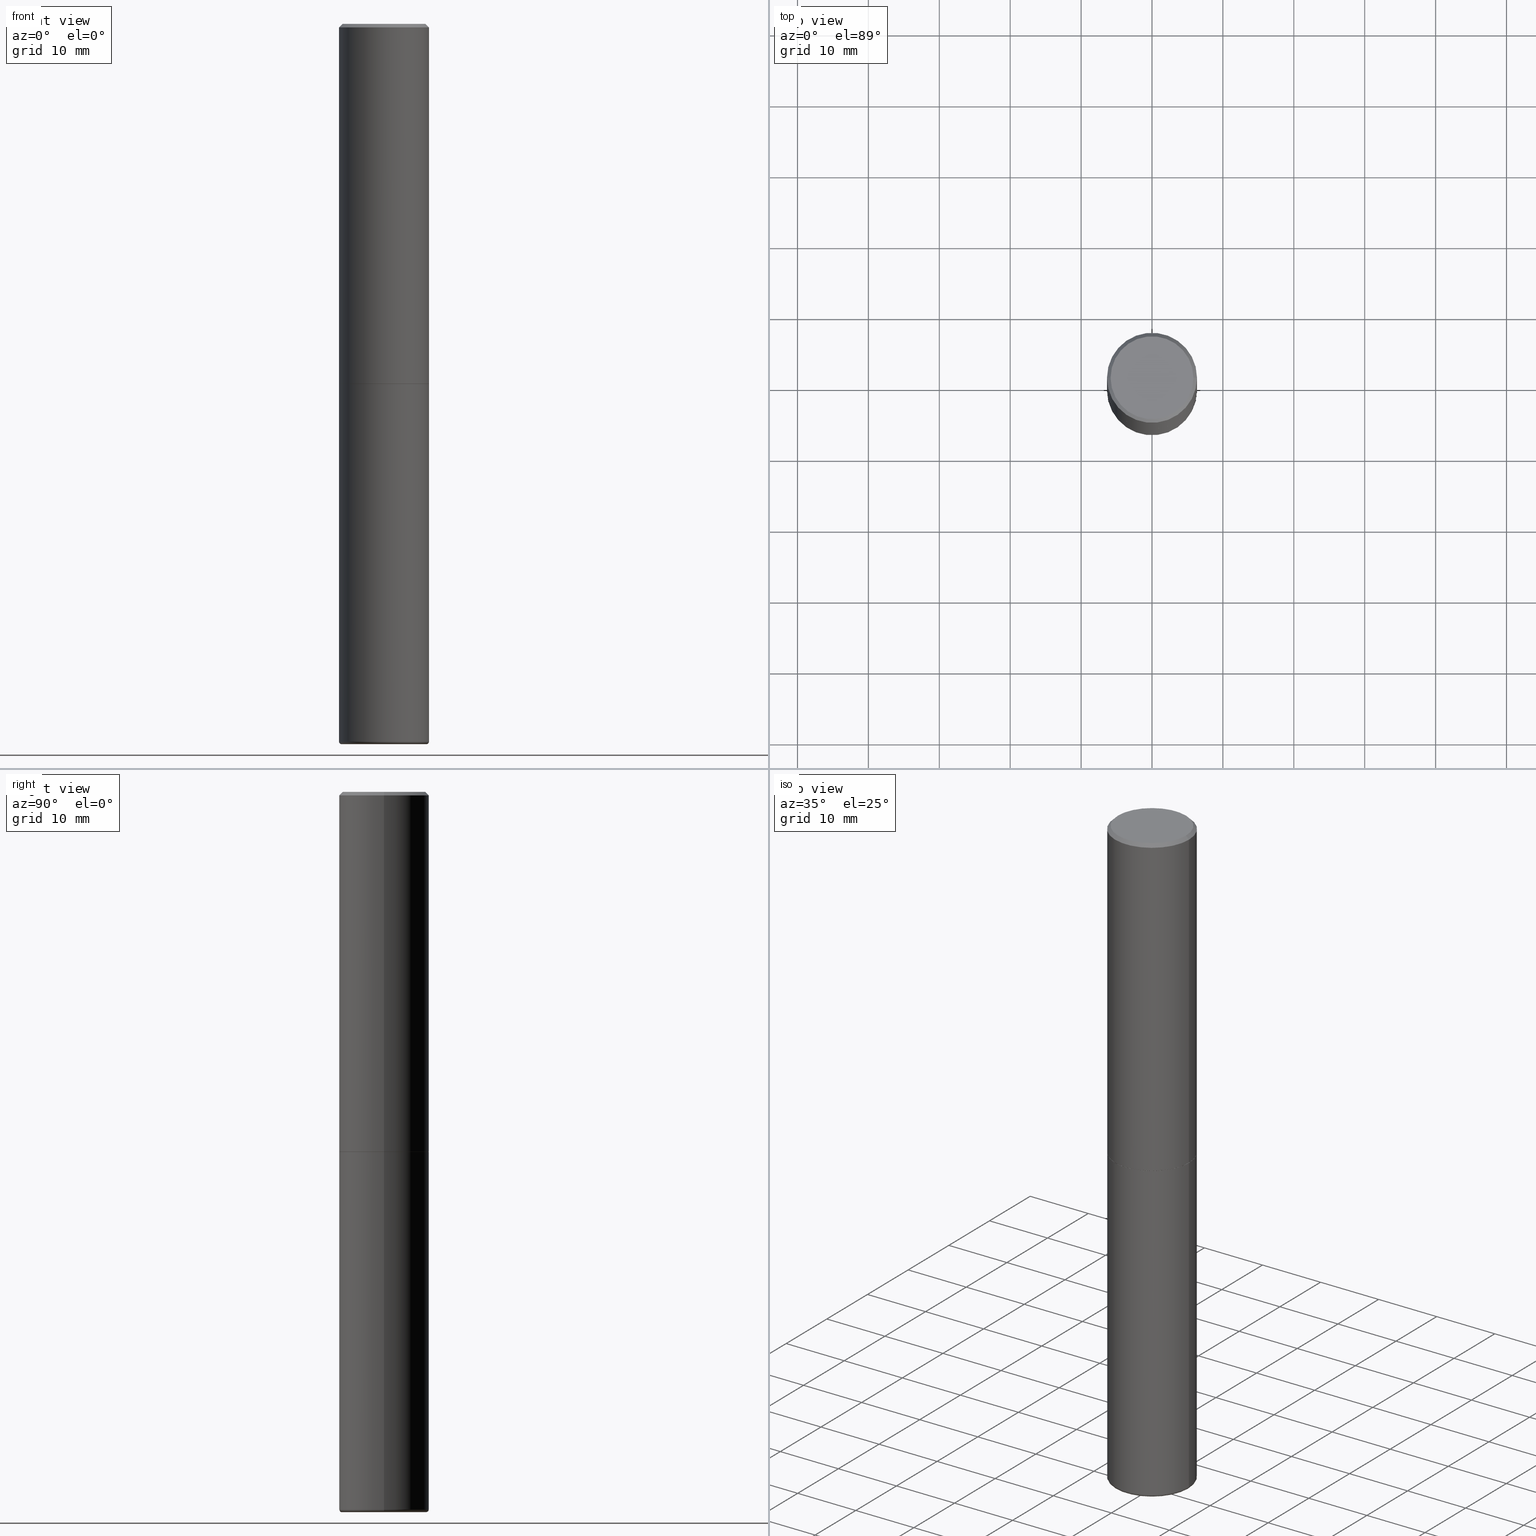
[diagram: canonical four-view strip — front | top / right | iso, engineering-drawing reading convention]
A machine part, canonical four-view strip (front | top / right | iso — engineering-drawing reading convention). The complete STEP part file that produces these views, byte-faithful:
ISO-10303-21;
HEADER;
FILE_DESCRIPTION (( 'STEP AP203' ),
    '1' );
FILE_NAME ('35617.STEP',
    '2022-11-02T20:28:33',
    ( '' ),
    ( '' ),
    'SwSTEP 2.0',
    'SolidWorks 2022',
    '' );
FILE_SCHEMA (( 'CONFIG_CONTROL_DESIGN' ));
ENDSEC;

DATA;
#1 = AXIS2_PLACEMENT_3D ( 'NONE', #134, #99, #222 ) ;
#2 = AXIS2_PLACEMENT_3D ( 'NONE', #331, #301, #256 ) ;
#3 = ORIENTED_EDGE ( 'NONE', *, *, #362, .T. ) ;
#4 = EDGE_CURVE ( 'NONE', #121, #168, #402, .T. ) ;
#5 = VECTOR ( 'NONE', #71, 39.37007874015748143 ) ;
#6 = CC_DESIGN_APPROVAL ( #428, ( #295 ) ) ;
#7 = EDGE_LOOP ( 'NONE', ( #365, #283 ) ) ;
#8 = DIRECTION ( 'NONE',  ( 1.000000000000000000, -6.982962677686268288E-15, 4.883557194083113462E-29 ) ) ;
#9 = FACE_OUTER_BOUND ( 'NONE', #326, .T. ) ;
#10 = EDGE_CURVE ( 'NONE', #348, #470, #146, .T. ) ;
#11 = DIRECTION ( 'NONE',  ( 7.105427357601001859E-15, 1.000000000000000000, -3.491481338843145583E-15 ) ) ;
#12 = VERTEX_POINT ( 'NONE', #85 ) ;
#13 = AXIS2_PLACEMENT_3D ( 'NONE', #327, #252, #433 ) ;
#14 = DIRECTION ( 'NONE',  ( -2.445468806185136597E-29, 3.491481338843145583E-15, 1.000000000000000000 ) ) ;
#15 = ORIENTED_EDGE ( 'NONE', *, *, #46, .T. ) ;
#16 = APPROVAL_DATE_TIME ( #208, #464 ) ;
#17 = ORIENTED_EDGE ( 'NONE', *, *, #280, .T. ) ;
#18 = CARTESIAN_POINT ( 'NONE',  ( 0.2348691019675247238, -1.557724435915918380E-14, -4.000000000000000000 ) ) ;
#19 = CARTESIAN_POINT ( 'NONE',  ( 0.2500000000000000555, -1.565929579888516622E-14, -3.985000571154037274 ) ) ;
#20 = CARTESIAN_POINT ( 'NONE',  ( 9.781306159430471629E-29, -1.396511288092772933E-14, -3.999767298070359356 ) ) ;
#21 = DIRECTION ( 'NONE',  ( 1.000000000000000000, 0.000000000000000000, 0.000000000000000000 ) ) ;
#22 = DIRECTION ( 'NONE',  ( -2.445468806185136877E-29, 3.491481338843145188E-15, 1.000000000000000000 ) ) ;
#23 = AXIS2_PLACEMENT_3D ( 'NONE', #182, #216, #72 ) ;
#24 = CC_DESIGN_APPROVAL ( #464, ( #345 ) ) ;
#25 = CARTESIAN_POINT ( 'NONE',  ( 4.890937612370273194E-29, -6.982962677686291165E-15, -2.000000000000000000 ) ) ;
#26 = LENGTH_MEASURE_WITH_UNIT ( LENGTH_MEASURE( 0.02539999999999999897 ), #485 );
#27 = FACE_OUTER_BOUND ( 'NONE', #221, .T. ) ;
#28 = DIRECTION ( 'NONE',  ( -1.000000000000000000, 6.982962677686267499E-15, 0.000000000000000000 ) ) ;
#29 = FACE_OUTER_BOUND ( 'NONE', #156, .T. ) ;
#30 = CYLINDRICAL_SURFACE ( 'NONE', #462, 0.2500000000000000000 ) ;
#31 = CIRCLE ( 'NONE', #1, 0.2489999999999999714 ) ;
#32 = CALENDAR_DATE ( 2022, 2, 11 ) ;
#33 = DIRECTION ( 'NONE',  ( 1.000000000000000000, -6.982962677686267499E-15, 0.000000000000000000 ) ) ;
#34 = APPROVAL_ROLE ( '' ) ;
#35 = ORIENTED_EDGE ( 'NONE', *, *, #288, .F. ) ;
#36 = EDGE_CURVE ( 'NONE', #114, #277, #160, .T. ) ;
#37 =( NAMED_UNIT ( * ) PLANE_ANGLE_UNIT ( ) SI_UNIT ( $, .RADIAN. ) );
#38 = VECTOR ( 'NONE', #22, 39.37007874015748143 ) ;
#39 = ADVANCED_FACE ( 'NONE', ( #9 ), #278, .F. ) ;
#40 = EDGE_LOOP ( 'NONE', ( #441, #360, #3, #318 ) ) ;
#41 = EDGE_LOOP ( 'NONE', ( #235, #275, #49, #317 ) ) ;
#42 = CIRCLE ( 'NONE', #86, 0.2299999999999992328 ) ;
#43 = CONICAL_SURFACE ( 'NONE', #315, 0.2489999999999999714, 0.7853981633974141952 ) ;
#44 = CARTESIAN_POINT ( 'NONE',  ( -0.2499999999999993061, 1.675911042644698449E-15, -0.02000000000000010797 ) ) ;
#45 = DIRECTION ( 'NONE',  ( -2.445468806185136597E-29, 3.491481338843145583E-15, 1.000000000000000000 ) ) ;
#46 = EDGE_CURVE ( 'NONE', #387, #439, #369, .T. ) ;
#47 = DIRECTION ( 'NONE',  ( 0.9993908270190957621, -6.978169709227547799E-15, -0.03489949670250241942 ) ) ;
#48 = CC_DESIGN_DATE_AND_TIME_ASSIGNMENT ( #106, #260, ( #295 ) ) ;
#49 = ORIENTED_EDGE ( 'NONE', *, *, #449, .T. ) ;
#50 = CARTESIAN_POINT ( 'NONE',  ( 4.890937612370273194E-29, -6.982962677686291165E-15, -2.000000000000000000 ) ) ;
#51 = COORDINATED_UNIVERSAL_TIME_OFFSET ( 5, 0, .BEHIND. ) ;
#52 = AXIS2_PLACEMENT_3D ( 'NONE', #65, #450, #141 ) ;
#53 = VECTOR ( 'NONE', #255, 39.37007874015748854 ) ;
#54 = CC_DESIGN_PERSON_AND_ORGANIZATION_ASSIGNMENT ( #484, #440, ( #78 ) ) ;
#55 = DIRECTION ( 'NONE',  ( -2.445468806185136597E-29, 3.491481338843145583E-15, 1.000000000000000000 ) ) ;
#56 = DIRECTION ( 'NONE',  ( -0.9993908270190957621, 6.856857904024552526E-15, -0.03489949670250241942 ) ) ;
#57 = EDGE_LOOP ( 'NONE', ( #119, #436, #291, #162 ) ) ;
#58 = CYLINDRICAL_SURFACE ( 'NONE', #187, 0.2500000000000000000 ) ;
#59 = DIRECTION ( 'NONE',  ( 2.445468806185136597E-29, -3.491481338843145583E-15, -1.000000000000000000 ) ) ;
#60 =( NAMED_UNIT ( * ) SI_UNIT ( $, .STERADIAN. ) SOLID_ANGLE_UNIT ( ) );
#61 = DIRECTION ( 'NONE',  ( 1.000000000000000000, -6.982962677686213068E-15, 0.000000000000000000 ) ) ;
#62 = CARTESIAN_POINT ( 'NONE',  ( -0.2489999999999999714, -5.208412811295419307E-15, -2.000000000000000000 ) ) ;
#63 = PERSON_AND_ORGANIZATION ( #434, #479 ) ;
#64 = CIRCLE ( 'NONE', #477, 0.2348691019675247238 ) ;
#65 = CARTESIAN_POINT ( 'NONE',  ( 1.606081415867835743E-15, 0.2299999999999992328, -7.987721954438203042E-16 ) ) ;
#66 = MECHANICAL_CONTEXT ( 'NONE', #447, 'mechanical' ) ;
#67 = ADVANCED_FACE ( 'NONE', ( #29 ), #307, .F. ) ;
#68 = EDGE_CURVE ( 'NONE', #81, #348, #265, .T. ) ;
#69 = DIRECTION ( 'NONE',  ( -1.000000000000000000, 6.982962677686262766E-15, 0.000000000000000000 ) ) ;
#70 = DATE_AND_TIME ( #32, #202 ) ;
#71 = DIRECTION ( 'NONE',  ( -0.7071067811865471286, 2.468850131082252722E-15, -0.7071067811865479058 ) ) ;
#72 = DIRECTION ( 'NONE',  ( 1.000000000000000000, -6.982962677686266711E-15, 0.000000000000000000 ) ) ;
#73 = PERSON_AND_ORGANIZATION_ROLE ( 'design_supplier' ) ;
#74 = ADVANCED_FACE ( 'NONE', ( #304 ), #486, .T. ) ;
#75 = ORIENTED_EDGE ( 'NONE', *, *, #409, .F. ) ;
#76 = COORDINATED_UNIVERSAL_TIME_OFFSET ( 5, 0, .BEHIND. ) ;
#77 = VERTEX_POINT ( 'NONE', #414 ) ;
#78 = PRODUCT ( '35617', '35617', '', ( #66 ) ) ;
#79 = CIRCLE ( 'NONE', #308, 0.2499999999999999722 ) ;
#80 = LOCAL_TIME ( 16, 28, 33.00000000000000000, #76 ) ;
#81 = VERTEX_POINT ( 'NONE', #62 ) ;
#82 = ORIENTED_EDGE ( 'NONE', *, *, #267, .F. ) ;
#83 = ORIENTED_EDGE ( 'NONE', *, *, #409, .T. ) ;
#84 = LINE ( 'NONE', #395, #192 ) ;
#85 = CARTESIAN_POINT ( 'NONE',  ( 0.2499999999999993061, -1.784954126219741456E-15, -0.02000000000000010797 ) ) ;
#86 = AXIS2_PLACEMENT_3D ( 'NONE', #253, #139, #102 ) ;
#87 = ORIENTED_EDGE ( 'NONE', *, *, #4, .T. ) ;
#88 = ADVANCED_FACE ( 'NONE', ( #448 ), #320, .F. ) ;
#89 = DIRECTION ( 'NONE',  ( 1.000000000000000000, -6.982962677686267499E-15, 0.000000000000000000 ) ) ;
#90 = PLANE ( 'NONE',  #443 ) ;
#91 = ORIENTED_EDGE ( 'NONE', *, *, #46, .F. ) ;
#92 = PERSON_AND_ORGANIZATION ( #434, #479 ) ;
#93 = ADVANCED_FACE ( 'NONE', ( #105 ), #271, .F. ) ;
#94 = PERSON_AND_ORGANIZATION_ROLE ( 'creator' ) ;
#95 = ORIENTED_EDGE ( 'NONE', *, *, #309, .T. ) ;
#96 = TOROIDAL_SURFACE ( 'NONE', #161, 0.2350000000000002642, 0.01499999999999983638 ) ;
#97 = CC_DESIGN_APPROVAL ( #195, ( #189 ) ) ;
#98 = PLANE ( 'NONE',  #432 ) ;
#99 = DIRECTION ( 'NONE',  ( -2.445468806185136597E-29, 3.491481338843145583E-15, 1.000000000000000000 ) ) ;
#100 = PERSON_AND_ORGANIZATION ( #434, #479 ) ;
#101 = CARTESIAN_POINT ( 'NONE',  ( 0.2489999999999999714, -8.721720384430171040E-15, -2.000000000000000000 ) ) ;
#102 = DIRECTION ( 'NONE',  ( 1.000000000000000000, -6.982962677686266711E-15, 4.875813741439116029E-29 ) ) ;
#103 = APPROVAL_ROLE ( '' ) ;
#104 = CARTESIAN_POINT ( 'NONE',  ( 4.890937612370299433E-31, -6.982962677686328587E-17, -0.02000000000000010797 ) ) ;
#105 = FACE_OUTER_BOUND ( 'NONE', #420, .T. ) ;
#106 = DATE_AND_TIME ( #361, #359 ) ;
#107 = AXIS2_PLACEMENT_3D ( 'NONE', #188, #491, #61 ) ;
#108 = DIRECTION ( 'NONE',  ( 1.000000000000000000, -6.982962677686267499E-15, 0.000000000000000000 ) ) ;
#109 = CARTESIAN_POINT ( 'NONE',  ( 9.781875224740546387E-29, -1.396592535537258233E-14, -4.000000000000000000 ) ) ;
#110 = PERSON_AND_ORGANIZATION ( #434, #479 ) ;
#111 = ADVANCED_BREP_SHAPE_REPRESENTATION ( '35617', ( #203, #372, #127 ), #386 ) ;
#112 = CARTESIAN_POINT ( 'NONE',  ( -0.2500000000000000000, 1.776356839400250465E-15, -1.229733772563726445E-29 ) ) ;
#113 = LINE ( 'NONE', #487, #401 ) ;
#114 = VERTEX_POINT ( 'NONE', #376 ) ;
#115 = CIRCLE ( 'NONE', #23, 0.2082041019675247295 ) ;
#116 = PRODUCT_DEFINITION_SHAPE ( 'NONE', 'NONE',  #295 ) ;
#117 = EDGE_LOOP ( 'NONE', ( #120, #154, #429, #343 ) ) ;
#118 = CC_DESIGN_PERSON_AND_ORGANIZATION_ASSIGNMENT ( #100, #94, ( #345 ) ) ;
#119 = ORIENTED_EDGE ( 'NONE', *, *, #351, .F. ) ;
#120 = ORIENTED_EDGE ( 'NONE', *, *, #130, .F. ) ;
#121 = VERTEX_POINT ( 'NONE', #259 ) ;
#122 = EDGE_CURVE ( 'NONE', #421, #81, #31, .T. ) ;
#123 = VERTEX_POINT ( 'NONE', #184 ) ;
#124 = CARTESIAN_POINT ( 'NONE',  ( 0.2299999999999992328, -1.681434332853594278E-15, 8.537024980212318048E-18 ) ) ;
#125 = CARTESIAN_POINT ( 'NONE',  ( 9.781875224740546387E-29, -1.396592535537258233E-14, -4.000000000000000000 ) ) ;
#126 = ORIENTED_EDGE ( 'NONE', *, *, #198, .F. ) ;
#127 = AXIS2_PLACEMENT_3D ( 'NONE', #481, #142, #21 ) ;
#128 = DIRECTION ( 'NONE',  ( -2.445468806185136597E-29, 3.491481338843145583E-15, 1.000000000000000000 ) ) ;
#129 = ORIENTED_EDGE ( 'NONE', *, *, #254, .T. ) ;
#130 = EDGE_CURVE ( 'NONE', #277, #114, #42, .T. ) ;
#131 = CARTESIAN_POINT ( 'NONE',  ( 0.2500000000000000000, -1.745740669421566678E-15, 1.219044193948983948E-29 ) ) ;
#132 = DIRECTION ( 'NONE',  ( -2.438088387897960049E-29, 3.491481338843145188E-15, 1.000000000000000000 ) ) ;
#133 = ORIENTED_EDGE ( 'NONE', *, *, #424, .F. ) ;
#134 = CARTESIAN_POINT ( 'NONE',  ( 4.890937612370273194E-29, -6.982962677686291165E-15, -2.000000000000000000 ) ) ;
#135 = APPLICATION_PROTOCOL_DEFINITION ( 'international standard', 'config_control_design', 1994, #447 ) ;
#136 = AXIS2_PLACEMENT_3D ( 'NONE', #109, #336, #145 ) ;
#137 = CIRCLE ( 'NONE', #489, 0.2499999999999993061 ) ;
#138 = CARTESIAN_POINT ( 'NONE',  ( 9.781875224740546387E-29, -1.396592535537258233E-14, -4.000000000000000000 ) ) ;
#139 = DIRECTION ( 'NONE',  ( -2.445468806185136597E-29, 3.491481338843145583E-15, 1.000000000000000000 ) ) ;
#140 = DIRECTION ( 'NONE',  ( -0.9999619230641714207, 6.952228252019186602E-15, -0.008726535498369011531 ) ) ;
#141 = DIRECTION ( 'NONE',  ( -1.000000000000000000, 6.982962677686265922E-15, -4.876176775795935793E-29 ) ) ;
#142 = DIRECTION ( 'NONE',  ( 0.000000000000000000, 0.000000000000000000, 1.000000000000000000 ) ) ;
#143 = EDGE_CURVE ( 'NONE', #277, #12, #490, .T. ) ;
#144 =( CONVERSION_BASED_UNIT ( 'INCH', #26 ) LENGTH_UNIT ( ) NAMED_UNIT ( #302 ) );
#145 = DIRECTION ( 'NONE',  ( 1.000000000000000000, -6.982962677686262766E-15, 0.000000000000000000 ) ) ;
#146 = CIRCLE ( 'NONE', #425, 0.2499999999999999722 ) ;
#147 = VECTOR ( 'NONE', #300, 39.37007874015748143 ) ;
#148 = FACE_OUTER_BOUND ( 'NONE', #40, .T. ) ;
#149 = DIRECTION ( 'NONE',  ( 1.000000000000000000, -6.982962677686266711E-15, 4.876176775795935793E-29 ) ) ;
#150 = ADVANCED_FACE ( 'NONE', ( #373 ), #367, .T. ) ;
#151 = DIRECTION ( 'NONE',  ( -2.445468806185136877E-29, 3.491481338843145188E-15, 1.000000000000000000 ) ) ;
#152 = DIRECTION ( 'NONE',  ( 1.000000000000000000, -6.982962677686266711E-15, 4.876176775795935793E-29 ) ) ;
#153 = PERSON_AND_ORGANIZATION ( #434, #479 ) ;
#154 = ORIENTED_EDGE ( 'NONE', *, *, #143, .T. ) ;
#155 = CIRCLE ( 'NONE', #237, 0.2500000000000000555 ) ;
#156 = EDGE_LOOP ( 'NONE', ( #314, #197 ) ) ;
#157 = EDGE_CURVE ( 'NONE', #123, #194, #261, .T. ) ;
#158 = EDGE_CURVE ( 'NONE', #423, #77, #79, .T. ) ;
#159 = ORIENTED_EDGE ( 'NONE', *, *, #68, .T. ) ;
#160 = CIRCLE ( 'NONE', #488, 0.2299999999999992328 ) ;
#161 = AXIS2_PLACEMENT_3D ( 'NONE', #364, #128, #435 ) ;
#162 = ORIENTED_EDGE ( 'NONE', *, *, #233, .F. ) ;
#163 = EDGE_LOOP ( 'NONE', ( #249, #363, #328, #391 ) ) ;
#164 = DIRECTION ( 'NONE',  ( 1.000000000000000000, -6.982962677686262766E-15, 0.000000000000000000 ) ) ;
#165 = DIRECTION ( 'NONE',  ( -2.445468806185136597E-29, 3.491481338843145583E-15, 1.000000000000000000 ) ) ;
#166 = ORIENTED_EDGE ( 'NONE', *, *, #198, .T. ) ;
#167 = DIRECTION ( 'NONE',  ( -1.000000000000000000, 7.105427357600937172E-15, 0.000000000000000000 ) ) ;
#168 = VERTEX_POINT ( 'NONE', #483 ) ;
#169 = AXIS2_PLACEMENT_3D ( 'NONE', #407, #217, #370 ) ;
#170 = DIRECTION ( 'NONE',  ( 1.000000000000000000, -6.982962677686266711E-15, 4.876176775795935793E-29 ) ) ;
#171 = ORIENTED_EDGE ( 'NONE', *, *, #351, .T. ) ;
#172 = CARTESIAN_POINT ( 'NONE',  ( 9.781306159430471629E-29, -1.396511288092772933E-14, -3.999767298070359356 ) ) ;
#173 = FACE_OUTER_BOUND ( 'NONE', #473, .T. ) ;
#174 = CARTESIAN_POINT ( 'NONE',  ( 9.781875224740546387E-29, -1.396592535537258233E-14, -4.000000000000000000 ) ) ;
#175 = APPLICATION_PROTOCOL_DEFINITION ( 'international standard', 'config_control_design', 1994, #465 ) ;
#176 = AXIS2_PLACEMENT_3D ( 'NONE', #474, #243, #324 ) ;
#177 = DIRECTION ( 'NONE',  ( 2.438088387897960049E-29, -3.491481338843145188E-15, -1.000000000000000000 ) ) ;
#178 = ADVANCED_FACE ( 'NONE', ( #27 ), #58, .T. ) ;
#179 = DIRECTION ( 'NONE',  ( -2.445468806185136597E-29, 3.491481338843145583E-15, 1.000000000000000000 ) ) ;
#180 = DIRECTION ( 'NONE',  ( 1.000000000000000000, -6.982962677686267499E-15, 0.000000000000000000 ) ) ;
#181 = CARTESIAN_POINT ( 'NONE',  ( -0.2489999999999999714, -5.213711265643641709E-15, -2.000000000000000000 ) ) ;
#182 = CARTESIAN_POINT ( 'NONE',  ( 9.781306159430471629E-29, -1.396511288092772933E-14, -3.999767298070359356 ) ) ;
#183 = ADVANCED_FACE ( 'NONE', ( #366 ), #220, .T. ) ;
#184 = CARTESIAN_POINT ( 'NONE',  ( -0.2500000000000000555, -8.671902064174693707E-15, -3.985000571154037274 ) ) ;
#185 = ADVANCED_FACE ( 'NONE', ( #330 ), #393, .T. ) ;
#186 = AXIS2_PLACEMENT_3D ( 'NONE', #453, #338, #149 ) ;
#187 = AXIS2_PLACEMENT_3D ( 'NONE', #285, #213, #170 ) ;
#188 = CARTESIAN_POINT ( 'NONE',  ( 0.2350000000000002642, -1.555455135871987285E-14, -3.985000571154037274 ) ) ;
#189 = SECURITY_CLASSIFICATION ( '', '', #230 ) ;
#190 = CARTESIAN_POINT ( 'NONE',  ( 4.890937612370273194E-29, -6.982962677686291165E-15, -2.000000000000000000 ) ) ;
#191 = VERTEX_POINT ( 'NONE', #438 ) ;
#192 = VECTOR ( 'NONE', #47, 39.37007874015747433 ) ;
#193 = VECTOR ( 'NONE', #323, 39.37007874015748854 ) ;
#194 = VERTEX_POINT ( 'NONE', #19 ) ;
#195 = APPROVAL ( #225, 'UNSPECIFIED' ) ;
#196 = ORIENTED_EDGE ( 'NONE', *, *, #280, .F. ) ;
#197 = ORIENTED_EDGE ( 'NONE', *, *, #130, .T. ) ;
#198 = EDGE_CURVE ( 'NONE', #191, #387, #472, .T. ) ;
#199 = CLOSED_SHELL ( 'NONE', ( #185, #74, #183, #356, #150, #397, #319, #67 ) ) ;
#200 = AXIS2_PLACEMENT_3D ( 'NONE', #354, #11, #167 ) ;
#201 = ORIENTED_EDGE ( 'NONE', *, *, #347, .F. ) ;
#202 = LOCAL_TIME ( 16, 28, 33.00000000000000000, #384 ) ;
#203 = MANIFOLD_SOLID_BREP ( 'Body-Move/Copy2[1]', #431 ) ;
#204 = CARTESIAN_POINT ( 'NONE',  ( 4.890937612370299433E-31, -6.982962677686328587E-17, -0.02000000000000010797 ) ) ;
#205 = ORIENTED_EDGE ( 'NONE', *, *, #158, .F. ) ;
#206 = CARTESIAN_POINT ( 'NONE',  ( 9.745194589387151440E-29, -1.391355512946359954E-14, -3.985000571154037274 ) ) ;
#207 = DIRECTION ( 'NONE',  ( 1.000000000000000000, -6.982962677686267499E-15, 0.000000000000000000 ) ) ;
#208 = DATE_AND_TIME ( #445, #251 ) ;
#209 = CIRCLE ( 'NONE', #200, 0.01499999999999983985 ) ;
#210 = VERTEX_POINT ( 'NONE', #44 ) ;
#211 = CARTESIAN_POINT ( 'NONE',  ( 4.888492143564087591E-29, -6.979471196347447369E-15, -1.998999999999999888 ) ) ;
#212 = CARTESIAN_POINT ( 'NONE',  ( 4.888492143564087591E-29, -6.979471196347447369E-15, -1.998999999999999888 ) ) ;
#213 = DIRECTION ( 'NONE',  ( -2.445468806185136597E-29, 3.491481338843145583E-15, 1.000000000000000000 ) ) ;
#214 = CARTESIAN_POINT ( 'NONE',  ( 0.2499999999999993061, -1.784954126219741456E-15, -0.02000000000000010797 ) ) ;
#215 = EDGE_CURVE ( 'NONE', #194, #77, #240, .T. ) ;
#216 = DIRECTION ( 'NONE',  ( -2.445468806185136597E-29, 3.491481338843145583E-15, 1.000000000000000000 ) ) ;
#217 = DIRECTION ( 'NONE',  ( -2.445468806185136597E-29, 3.491481338843145583E-15, 1.000000000000000000 ) ) ;
#218 = APPROVAL_DATE_TIME ( #247, #428 ) ;
#219 = AXIS2_PLACEMENT_3D ( 'NONE', #20, #59, #224 ) ;
#220 = CONICAL_SURFACE ( 'NONE', #13, 0.2499999999999993061, 0.7853981633974477239 ) ;
#221 = EDGE_LOOP ( 'NONE', ( #461, #83, #427, #475 ) ) ;
#222 = DIRECTION ( 'NONE',  ( 1.000000000000000000, -6.982962677686267499E-15, 0.000000000000000000 ) ) ;
#223 = CARTESIAN_POINT ( 'NONE',  ( 0.2348691019675247238, -1.560600752855349750E-14, -4.000000000000000000 ) ) ;
#224 = DIRECTION ( 'NONE',  ( -1.000000000000000000, 6.982962677686266711E-15, 0.000000000000000000 ) ) ;
#225 = APPROVAL_STATUS ( 'not_yet_approved' ) ;
#226 = CARTESIAN_POINT ( 'NONE',  ( -0.2499999999999999722, -8.671902064174693707E-15, -2.000000000000000000 ) ) ;
#227 = AXIS2_PLACEMENT_3D ( 'NONE', #125, #444, #297 ) ;
#228 = CIRCLE ( 'NONE', #262, 0.2499999999999993061 ) ;
#229 = DIRECTION ( 'NONE',  ( 1.000000000000000000, -6.982962677686266711E-15, 0.000000000000000000 ) ) ;
#230 = SECURITY_CLASSIFICATION_LEVEL ( 'unclassified' ) ;
#231 = ORIENTED_EDGE ( 'NONE', *, *, #388, .T. ) ;
#232 = EDGE_LOOP ( 'NONE', ( #15, #95, #35, #390 ) ) ;
#233 = EDGE_CURVE ( 'NONE', #210, #12, #137, .T. ) ;
#234 = UNCERTAINTY_MEASURE_WITH_UNIT (LENGTH_MEASURE( 1.000000000000000082E-05 ), #144, 'distance_accuracy_value', 'NONE');
#235 = ORIENTED_EDGE ( 'NONE', *, *, #68, .F. ) ;
#236 = ADVANCED_FACE ( 'NONE', ( #173 ), #379, .F. ) ;
#237 = AXIS2_PLACEMENT_3D ( 'NONE', #206, #14, #469 ) ;
#238 = EDGE_LOOP ( 'NONE', ( #126, #322, #231, #91 ) ) ;
#239 = ADVANCED_FACE ( 'NONE', ( #352 ), #419, .T. ) ;
#240 = LINE ( 'NONE', #131, #147 ) ;
#241 = VECTOR ( 'NONE', #151, 39.37007874015748143 ) ;
#242 = CARTESIAN_POINT ( 'NONE',  ( -2.087702828670439639E-46, 2.980686340760894400E-32, 8.537024980200822558E-18 ) ) ;
#243 = DIRECTION ( 'NONE',  ( -2.445468806185136597E-29, 3.491481338843145583E-15, 1.000000000000000000 ) ) ;
#244 = DESIGN_CONTEXT ( 'detailed design', #465, 'design' ) ;
#245 = DIRECTION ( 'NONE',  ( -1.000000000000000000, 6.982962677686266711E-15, 0.000000000000000000 ) ) ;
#246 = ORIENTED_EDGE ( 'NONE', *, *, #274, .F. ) ;
#247 = DATE_AND_TIME ( #298, #463 ) ;
#248 = DIRECTION ( 'NONE',  ( 2.445468806185136597E-29, -3.491481338843145583E-15, -1.000000000000000000 ) ) ;
#249 = ORIENTED_EDGE ( 'NONE', *, *, #309, .F. ) ;
#250 = CIRCLE ( 'NONE', #107, 0.01499999999999983985 ) ;
#251 = LOCAL_TIME ( 16, 28, 33.00000000000000000, #51 ) ;
#252 = DIRECTION ( 'NONE',  ( 2.445468806185136597E-29, -3.491481338843145583E-15, -1.000000000000000000 ) ) ;
#253 = CARTESIAN_POINT ( 'NONE',  ( -2.087702828670439639E-46, 2.980686340760894400E-32, 8.537024980200822558E-18 ) ) ;
#254 = EDGE_CURVE ( 'NONE', #470, #348, #426, .T. ) ;
#255 = DIRECTION ( 'NONE',  ( 0.7071067811865232589, -2.468850131082003836E-15, 0.7071067811865715536 ) ) ;
#256 = DIRECTION ( 'NONE',  ( 1.000000000000000000, -6.982962677686266711E-15, 4.876176775795935793E-29 ) ) ;
#257 = COORDINATED_UNIVERSAL_TIME_OFFSET ( 5, 0, .BEHIND. ) ;
#258 = CARTESIAN_POINT ( 'NONE',  ( 0.2499999999999999722, -8.725211865769014047E-15, -1.998999999999999888 ) ) ;
#259 = CARTESIAN_POINT ( 'NONE',  ( 9.763398600547390540E-29, -1.393991001990825128E-14, -3.992496650618314824 ) ) ;
#260 = DATE_TIME_ROLE ( 'creation_date' ) ;
#261 = CIRCLE ( 'NONE', #169, 0.2500000000000000555 ) ;
#262 = AXIS2_PLACEMENT_3D ( 'NONE', #482, #311, #33 ) ;
#263 = APPROVAL_PERSON_ORGANIZATION ( #92, #428, #103 ) ;
#264 = LINE ( 'NONE', #337, #279 ) ;
#265 = LINE ( 'NONE', #181, #410 ) ;
#266 = DIRECTION ( 'NONE',  ( 2.445468806185136597E-29, -3.491481338843145583E-15, -1.000000000000000000 ) ) ;
#267 = EDGE_CURVE ( 'NONE', #81, #421, #325, .T. ) ;
#268 = DATE_AND_TIME ( #455, #80 ) ;
#269 = DIRECTION ( 'NONE',  ( -2.445468806185136597E-29, 3.491481338843145583E-15, 1.000000000000000000 ) ) ;
#270 = ORIENTED_EDGE ( 'NONE', *, *, #388, .F. ) ;
#271 = CONICAL_SURFACE ( 'NONE', #219, 0.2082041019675247295, 1.535889741755008586 ) ;
#272 = CIRCLE ( 'NONE', #299, 0.2082041019675247295 ) ;
#273 = CC_DESIGN_SECURITY_CLASSIFICATION ( #189, ( #345 ) ) ;
#274 = EDGE_CURVE ( 'NONE', #439, #387, #64, .T. ) ;
#275 = ORIENTED_EDGE ( 'NONE', *, *, #267, .T. ) ;
#276 = PERSON_AND_ORGANIZATION_ROLE ( 'classification_officer' ) ;
#277 = VERTEX_POINT ( 'NONE', #124 ) ;
#278 = CONICAL_SURFACE ( 'NONE', #227, 0.2348691019675247238, 1.562069680534929894 ) ;
#279 = VECTOR ( 'NONE', #140, 39.37007874015748854 ) ;
#280 = EDGE_CURVE ( 'NONE', #121, #191, #84, .T. ) ;
#281 = CC_DESIGN_PERSON_AND_ORGANIZATION_ASSIGNMENT ( #153, #73, ( #345 ) ) ;
#282 = EDGE_LOOP ( 'NONE', ( #129, #171, #201, #471 ) ) ;
#283 = ORIENTED_EDGE ( 'NONE', *, *, #158, .T. ) ;
#284 = CARTESIAN_POINT ( 'NONE',  ( -0.2082041019675247295, -1.251123140754731875E-14, -3.999767298070359356 ) ) ;
#285 = CARTESIAN_POINT ( 'NONE',  ( 0.000000000000000000, 0.000000000000000000, 0.000000000000000000 ) ) ;
#286 = VECTOR ( 'NONE', #412, 39.37007874015748143 ) ;
#287 = AXIS2_PLACEMENT_3D ( 'NONE', #358, #55, #89 ) ;
#288 = EDGE_CURVE ( 'NONE', #194, #123, #155, .T. ) ;
#289 = DIRECTION ( 'NONE',  ( -2.445468806185136597E-29, 3.491481338843145583E-15, 1.000000000000000000 ) ) ;
#290 = CC_DESIGN_PERSON_AND_ORGANIZATION_ASSIGNMENT ( #313, #276, ( #189 ) ) ;
#291 = ORIENTED_EDGE ( 'NONE', *, *, #392, .T. ) ;
#292 = DIRECTION ( 'NONE',  ( -2.445468806185136597E-29, 3.491481338843145583E-15, 1.000000000000000000 ) ) ;
#293 = ORIENTED_EDGE ( 'NONE', *, *, #4, .F. ) ;
#294 = PERSON_AND_ORGANIZATION ( #434, #479 ) ;
#295 = PRODUCT_DEFINITION ( 'UNKNOWN', '', #345, #244 ) ;
#296 = DIRECTION ( 'NONE',  ( 1.000000000000000000, -6.982962677686265922E-15, 4.876176775795935793E-29 ) ) ;
#297 = DIRECTION ( 'NONE',  ( -1.000000000000000000, 6.982962677686262766E-15, 0.000000000000000000 ) ) ;
#298 = CALENDAR_DATE ( 2022, 2, 11 ) ;
#299 = AXIS2_PLACEMENT_3D ( 'NONE', #335, #269, #229 ) ;
#300 = DIRECTION ( 'NONE',  ( -2.445468806185136877E-29, 3.491481338843145188E-15, 1.000000000000000000 ) ) ;
#301 = DIRECTION ( 'NONE',  ( -2.445468806185136597E-29, 3.491481338843145583E-15, 1.000000000000000000 ) ) ;
#302 = DIMENSIONAL_EXPONENTS ( 1.000000000000000000, 0.000000000000000000, 0.000000000000000000, 0.000000000000000000, 0.000000000000000000, 0.000000000000000000, 0.000000000000000000 ) ;
#303 = CARTESIAN_POINT ( 'NONE',  ( 4.890937612370273194E-29, -6.982962677686291165E-15, -2.000000000000000000 ) ) ;
#304 = FACE_OUTER_BOUND ( 'NONE', #282, .T. ) ;
#305 = APPROVAL_STATUS ( 'not_yet_approved' ) ;
#306 = DIRECTION ( 'NONE',  ( -2.445468806185136597E-29, 3.491481338843145583E-15, 1.000000000000000000 ) ) ;
#307 = PLANE ( 'NONE',  #52 ) ;
#308 = AXIS2_PLACEMENT_3D ( 'NONE', #25, #179, #334 ) ;
#309 = EDGE_CURVE ( 'NONE', #439, #123, #209, .T. ) ;
#310 = CARTESIAN_POINT ( 'NONE',  ( -0.2499999999999996669, 1.776356839400248098E-15, -1.229733772563724764E-29 ) ) ;
#311 = DIRECTION ( 'NONE',  ( -2.445468806185136597E-29, 3.491481338843145583E-15, 1.000000000000000000 ) ) ;
#312 = ADVANCED_FACE ( 'NONE', ( #396 ), #96, .T. ) ;
#313 = PERSON_AND_ORGANIZATION ( #434, #479 ) ;
#314 = ORIENTED_EDGE ( 'NONE', *, *, #36, .T. ) ;
#315 = AXIS2_PLACEMENT_3D ( 'NONE', #190, #306, #180 ) ;
#316 = ORIENTED_EDGE ( 'NONE', *, *, #122, .F. ) ;
#317 = ORIENTED_EDGE ( 'NONE', *, *, #10, .F. ) ;
#318 = ORIENTED_EDGE ( 'NONE', *, *, #233, .T. ) ;
#319 = ADVANCED_FACE ( 'NONE', ( #329 ), #90, .F. ) ;
#320 = CONICAL_SURFACE ( 'NONE', #476, 0.2348691019675247238, 1.562069680534929894 ) ;
#321 = AXIS2_PLACEMENT_3D ( 'NONE', #172, #248, #245 ) ;
#322 = ORIENTED_EDGE ( 'NONE', *, *, #424, .T. ) ;
#323 = DIRECTION ( 'NONE',  ( 0.9999619230641714207, -6.890705306874825328E-15, -0.008726535498369011531 ) ) ;
#324 = DIRECTION ( 'NONE',  ( 1.000000000000000000, -6.982962677686267499E-15, 0.000000000000000000 ) ) ;
#325 = CIRCLE ( 'NONE', #287, 0.2489999999999999714 ) ;
#326 = EDGE_LOOP ( 'NONE', ( #460, #166, #246, #270 ) ) ;
#327 = CARTESIAN_POINT ( 'NONE',  ( 4.890937612370299433E-31, -6.982962677686328587E-17, -0.02000000000000010797 ) ) ;
#328 = ORIENTED_EDGE ( 'NONE', *, *, #478, .T. ) ;
#329 = FACE_OUTER_BOUND ( 'NONE', #355, .T. ) ;
#330 = FACE_OUTER_BOUND ( 'NONE', #398, .T. ) ;
#331 = CARTESIAN_POINT ( 'NONE',  ( 0.000000000000000000, 0.000000000000000000, 0.000000000000000000 ) ) ;
#332 = AXIS2_PLACEMENT_3D ( 'NONE', #303, #406, #108 ) ;
#333 = CARTESIAN_POINT ( 'NONE',  ( 1.745740669421615193E-15, 0.2499999999999930056, -2.000000000000000888 ) ) ;
#334 = DIRECTION ( 'NONE',  ( 1.000000000000000000, -6.982962677686267499E-15, 0.000000000000000000 ) ) ;
#335 = CARTESIAN_POINT ( 'NONE',  ( 9.781306159430471629E-29, -1.396511288092772933E-14, -3.999767298070359356 ) ) ;
#336 = DIRECTION ( 'NONE',  ( -2.445468806185136597E-29, 3.491481338843145583E-15, 1.000000000000000000 ) ) ;
#337 = CARTESIAN_POINT ( 'NONE',  ( -0.2348691019675247238, -1.232584318219166716E-14, -4.000000000000000000 ) ) ;
#338 = DIRECTION ( 'NONE',  ( -2.445468806185136597E-29, 3.491481338843145583E-15, 1.000000000000000000 ) ) ;
#339 = AXIS2_PLACEMENT_3D ( 'NONE', #104, #266, #28 ) ;
#340 = CARTESIAN_POINT ( 'NONE',  ( 0.000000000000000000, 0.000000000000000000, 0.000000000000000000 ) ) ;
#341 = ADVANCED_FACE ( 'NONE', ( #442 ), #98, .F. ) ;
#342 = LINE ( 'NONE', #112, #241 ) ;
#343 = ORIENTED_EDGE ( 'NONE', *, *, #362, .F. ) ;
#344 = CIRCLE ( 'NONE', #332, 0.2499999999999999722 ) ;
#345 = PRODUCT_DEFINITION_FORMATION_WITH_SPECIFIED_SOURCE ( 'ANY', '', #78, .NOT_KNOWN. ) ;
#346 = CC_DESIGN_DATE_AND_TIME_ASSIGNMENT ( #70, #377, ( #189 ) ) ;
#347 = EDGE_CURVE ( 'NONE', #12, #210, #228, .T. ) ;
#348 = VERTEX_POINT ( 'NONE', #368 ) ;
#349 = ORIENTED_EDGE ( 'NONE', *, *, #122, .T. ) ;
#350 = ORIENTED_EDGE ( 'NONE', *, *, #254, .F. ) ;
#351 = EDGE_CURVE ( 'NONE', #348, #210, #375, .T. ) ;
#352 = FACE_OUTER_BOUND ( 'NONE', #163, .T. ) ;
#353 = DIRECTION ( 'NONE',  ( 1.000000000000000000, -6.982962677686266711E-15, 4.875813741439116029E-29 ) ) ;
#354 = CARTESIAN_POINT ( 'NONE',  ( -0.2350000000000002642, -1.224377970042736026E-14, -3.985000571154037274 ) ) ;
#355 = EDGE_LOOP ( 'NONE', ( #316, #82 ) ) ;
#356 = ADVANCED_FACE ( 'NONE', ( #148 ), #458, .T. ) ;
#357 = VECTOR ( 'NONE', #56, 39.37007874015747433 ) ;
#358 = CARTESIAN_POINT ( 'NONE',  ( 4.890937612370273194E-29, -6.982962677686291165E-15, -2.000000000000000000 ) ) ;
#359 = LOCAL_TIME ( 16, 28, 33.00000000000000000, #408 ) ;
#360 = ORIENTED_EDGE ( 'NONE', *, *, #36, .F. ) ;
#361 = CALENDAR_DATE ( 2022, 2, 11 ) ;
#362 = EDGE_CURVE ( 'NONE', #114, #210, #415, .T. ) ;
#363 = ORIENTED_EDGE ( 'NONE', *, *, #274, .T. ) ;
#364 = CARTESIAN_POINT ( 'NONE',  ( 9.745194589387151440E-29, -1.391355512946359954E-14, -3.985000571154037274 ) ) ;
#365 = ORIENTED_EDGE ( 'NONE', *, *, #422, .T. ) ;
#366 = FACE_OUTER_BOUND ( 'NONE', #117, .T. ) ;
#367 = CYLINDRICAL_SURFACE ( 'NONE', #2, 0.2499999999999996669 ) ;
#368 = CARTESIAN_POINT ( 'NONE',  ( -0.2500000000000000000, -1.748293572161900530E-15, -1.998999999999999888 ) ) ;
#369 = CIRCLE ( 'NONE', #136, 0.2348691019675247238 ) ;
#370 = DIRECTION ( 'NONE',  ( 1.000000000000000000, -6.982962677686269077E-15, 0.000000000000000000 ) ) ;
#371 = LINE ( 'NONE', #413, #53 ) ;
#372 = MANIFOLD_SOLID_BREP ( 'Body-Move/Copy2[2]', #199 ) ;
#373 = FACE_OUTER_BOUND ( 'NONE', #57, .T. ) ;
#374 = APPROVAL_STATUS ( 'not_yet_approved' ) ;
#375 = LINE ( 'NONE', #310, #38 ) ;
#376 = CARTESIAN_POINT ( 'NONE',  ( -0.2299999999999992328, 1.640996229256267392E-15, 8.537024980189468815E-18 ) ) ;
#377 = DATE_TIME_ROLE ( 'classification_date' ) ;
#378 = FACE_OUTER_BOUND ( 'NONE', #466, .T. ) ;
#379 = CONICAL_SURFACE ( 'NONE', #321, 0.2082041019675247295, 1.535889741755008586 ) ;
#380 = EDGE_CURVE ( 'NONE', #168, #191, #272, .T. ) ;
#381 = APPROVAL_PERSON_ORGANIZATION ( #110, #195, #34 ) ;
#382 = FACE_OUTER_BOUND ( 'NONE', #41, .T. ) ;
#383 = CC_DESIGN_PERSON_AND_ORGANIZATION_ASSIGNMENT ( #294, #451, ( #295 ) ) ;
#384 = COORDINATED_UNIVERSAL_TIME_OFFSET ( 5, 0, .BEHIND. ) ;
#385 = ORIENTED_EDGE ( 'NONE', *, *, #449, .F. ) ;
#386 =( GEOMETRIC_REPRESENTATION_CONTEXT ( 3 ) GLOBAL_UNCERTAINTY_ASSIGNED_CONTEXT ( ( #234 ) ) GLOBAL_UNIT_ASSIGNED_CONTEXT ( ( #144, #37, #60 ) ) REPRESENTATION_CONTEXT ( 'NONE', 'WORKASPACE' ) );
#387 = VERTEX_POINT ( 'NONE', #223 ) ;
#388 = EDGE_CURVE ( 'NONE', #168, #439, #264, .T. ) ;
#389 = ORIENTED_EDGE ( 'NONE', *, *, #157, .T. ) ;
#390 = ORIENTED_EDGE ( 'NONE', *, *, #478, .F. ) ;
#391 = ORIENTED_EDGE ( 'NONE', *, *, #157, .F. ) ;
#392 = EDGE_CURVE ( 'NONE', #470, #12, #113, .T. ) ;
#393 = CONICAL_SURFACE ( 'NONE', #176, 0.2489999999999999714, 0.7853981633974141952 ) ;
#394 = DIRECTION ( 'NONE',  ( -2.445468806185136597E-29, 3.491481338843145583E-15, 1.000000000000000000 ) ) ;
#395 = CARTESIAN_POINT ( 'NONE',  ( 0.2082041019675247295, -1.539349670560375506E-14, -3.999767298070359356 ) ) ;
#396 = FACE_OUTER_BOUND ( 'NONE', #232, .T. ) ;
#397 = ADVANCED_FACE ( 'NONE', ( #382 ), #43, .T. ) ;
#398 = EDGE_LOOP ( 'NONE', ( #349, #159, #350, #385 ) ) ;
#399 = APPROVAL_ROLE ( '' ) ;
#400 = CARTESIAN_POINT ( 'NONE',  ( 9.745194589387151440E-29, -1.391355512946359954E-14, -3.985000571154037274 ) ) ;
#401 = VECTOR ( 'NONE', #417, 39.37007874015748143 ) ;
#402 = LINE ( 'NONE', #284, #357 ) ;
#403 = ORIENTED_EDGE ( 'NONE', *, *, #380, .F. ) ;
#404 = DIRECTION ( 'NONE',  ( 1.000000000000000000, -6.982962677686267499E-15, 0.000000000000000000 ) ) ;
#405 = DIRECTION ( 'NONE',  ( -0.7071067811865232589, 7.493145998870265808E-15, 0.7071067811865715536 ) ) ;
#406 = DIRECTION ( 'NONE',  ( -2.445468806185136597E-29, 3.491481338843145583E-15, 1.000000000000000000 ) ) ;
#407 = CARTESIAN_POINT ( 'NONE',  ( 9.745194589387151440E-29, -1.391355512946359954E-14, -3.985000571154037274 ) ) ;
#408 = COORDINATED_UNIVERSAL_TIME_OFFSET ( 5, 0, .BEHIND. ) ;
#409 = EDGE_CURVE ( 'NONE', #123, #423, #342, .T. ) ;
#410 = VECTOR ( 'NONE', #405, 39.37007874015748854 ) ;
#411 = AXIS2_PLACEMENT_3D ( 'NONE', #211, #467, #207 ) ;
#412 = DIRECTION ( 'NONE',  ( 0.7071067811865471286, -7.319954787623254468E-15, -0.7071067811865479058 ) ) ;
#413 = CARTESIAN_POINT ( 'NONE',  ( 0.2489999999999999714, -8.721720384430171040E-15, -2.000000000000000000 ) ) ;
#414 = CARTESIAN_POINT ( 'NONE',  ( 0.2499999999999999722, -8.728703347107857054E-15, -2.000000000000000000 ) ) ;
#415 = LINE ( 'NONE', #456, #5 ) ;
#416 = PRODUCT_RELATED_PRODUCT_CATEGORY ( 'detail', '', ( #78 ) ) ;
#417 = DIRECTION ( 'NONE',  ( -2.445468806185136877E-29, 3.491481338843145188E-15, 1.000000000000000000 ) ) ;
#418 = APPROVAL_DATE_TIME ( #268, #195 ) ;
#419 = TOROIDAL_SURFACE ( 'NONE', #452, 0.2350000000000002642, 0.01499999999999983638 ) ;
#420 = EDGE_LOOP ( 'NONE', ( #196, #87, #133 ) ) ;
#421 = VERTEX_POINT ( 'NONE', #101 ) ;
#422 = EDGE_CURVE ( 'NONE', #77, #423, #344, .T. ) ;
#423 = VERTEX_POINT ( 'NONE', #226 ) ;
#424 = EDGE_CURVE ( 'NONE', #191, #168, #115, .T. ) ;
#425 = AXIS2_PLACEMENT_3D ( 'NONE', #212, #165, #430 ) ;
#426 = CIRCLE ( 'NONE', #411, 0.2499999999999999722 ) ;
#427 = ORIENTED_EDGE ( 'NONE', *, *, #422, .F. ) ;
#428 = APPROVAL ( #305, 'UNSPECIFIED' ) ;
#429 = ORIENTED_EDGE ( 'NONE', *, *, #347, .T. ) ;
#430 = DIRECTION ( 'NONE',  ( 1.000000000000000000, -6.982962677686267499E-15, 0.000000000000000000 ) ) ;
#431 = CLOSED_SHELL ( 'NONE', ( #39, #312, #178, #236, #93, #341, #437, #239, #88 ) ) ;
#432 = AXIS2_PLACEMENT_3D ( 'NONE', #333, #177, #454 ) ;
#433 = DIRECTION ( 'NONE',  ( -1.000000000000000000, 6.982962677686267499E-15, 0.000000000000000000 ) ) ;
#434 = PERSON ( 'UNSPECIFIED', 'UNSPECIFIED', 'UNSPECIFIED', ('UNSPECIFIED'), ('UNSPECIFIED'), ('UNSPECIFIED') ) ;
#435 = DIRECTION ( 'NONE',  ( 1.000000000000000000, -6.982962677686268288E-15, 4.883557194083113462E-29 ) ) ;
#436 = ORIENTED_EDGE ( 'NONE', *, *, #10, .T. ) ;
#437 = ADVANCED_FACE ( 'NONE', ( #378 ), #30, .T. ) ;
#438 = CARTESIAN_POINT ( 'NONE',  ( 0.2082041019675247295, -1.539349670560375506E-14, -3.999767298070359356 ) ) ;
#439 = VERTEX_POINT ( 'NONE', #446 ) ;
#440 = PERSON_AND_ORGANIZATION_ROLE ( 'design_owner' ) ;
#441 = ORIENTED_EDGE ( 'NONE', *, *, #143, .F. ) ;
#442 = FACE_OUTER_BOUND ( 'NONE', #7, .T. ) ;
#443 = AXIS2_PLACEMENT_3D ( 'NONE', #50, #132, #296 ) ;
#444 = DIRECTION ( 'NONE',  ( 2.445468806185136597E-29, -3.491481338843145583E-15, -1.000000000000000000 ) ) ;
#445 = CALENDAR_DATE ( 2022, 2, 11 ) ;
#446 = CARTESIAN_POINT ( 'NONE',  ( -0.2348691019675247238, -1.221713915143035127E-14, -4.000000000000000000 ) ) ;
#447 = APPLICATION_CONTEXT ( 'configuration controlled 3d designs of mechanical parts and assemblies' ) ;
#448 = FACE_OUTER_BOUND ( 'NONE', #238, .T. ) ;
#449 = EDGE_CURVE ( 'NONE', #421, #470, #371, .T. ) ;
#450 = DIRECTION ( 'NONE',  ( 2.438088387897960049E-29, -3.491481338843145188E-15, -1.000000000000000000 ) ) ;
#451 = PERSON_AND_ORGANIZATION_ROLE ( 'creator' ) ;
#452 = AXIS2_PLACEMENT_3D ( 'NONE', #400, #292, #8 ) ;
#453 = CARTESIAN_POINT ( 'NONE',  ( 0.000000000000000000, 0.000000000000000000, 0.000000000000000000 ) ) ;
#454 = DIRECTION ( 'NONE',  ( -1.000000000000000000, 6.982962677686265922E-15, -4.876176775795935793E-29 ) ) ;
#455 = CALENDAR_DATE ( 2022, 2, 11 ) ;
#456 = CARTESIAN_POINT ( 'NONE',  ( -0.2499999999999993061, 1.675911042644698449E-15, -0.02000000000000010797 ) ) ;
#457 = SHAPE_DEFINITION_REPRESENTATION ( #116, #111 ) ;
#458 = CONICAL_SURFACE ( 'NONE', #339, 0.2499999999999993061, 0.7853981633974477239 ) ;
#459 = ORIENTED_EDGE ( 'NONE', *, *, #215, .T. ) ;
#460 = ORIENTED_EDGE ( 'NONE', *, *, #380, .T. ) ;
#461 = ORIENTED_EDGE ( 'NONE', *, *, #288, .T. ) ;
#462 = AXIS2_PLACEMENT_3D ( 'NONE', #340, #492, #152 ) ;
#463 = LOCAL_TIME ( 16, 28, 33.00000000000000000, #257 ) ;
#464 = APPROVAL ( #374, 'UNSPECIFIED' ) ;
#465 = APPLICATION_CONTEXT ( 'configuration controlled 3d designs of mechanical parts and assemblies' ) ;
#466 = EDGE_LOOP ( 'NONE', ( #75, #389, #459, #205 ) ) ;
#467 = DIRECTION ( 'NONE',  ( -2.445468806185136597E-29, 3.491481338843145583E-15, 1.000000000000000000 ) ) ;
#468 = APPROVAL_PERSON_ORGANIZATION ( #63, #464, #399 ) ;
#469 = DIRECTION ( 'NONE',  ( 1.000000000000000000, -6.982962677686269077E-15, 0.000000000000000000 ) ) ;
#470 = VERTEX_POINT ( 'NONE', #258 ) ;
#471 = ORIENTED_EDGE ( 'NONE', *, *, #392, .F. ) ;
#472 = LINE ( 'NONE', #18, #193 ) ;
#473 = EDGE_LOOP ( 'NONE', ( #293, #17, #403 ) ) ;
#474 = CARTESIAN_POINT ( 'NONE',  ( 4.890937612370273194E-29, -6.982962677686291165E-15, -2.000000000000000000 ) ) ;
#475 = ORIENTED_EDGE ( 'NONE', *, *, #215, .F. ) ;
#476 = AXIS2_PLACEMENT_3D ( 'NONE', #174, #480, #69 ) ;
#477 = AXIS2_PLACEMENT_3D ( 'NONE', #138, #289, #164 ) ;
#478 = EDGE_CURVE ( 'NONE', #387, #194, #250, .T. ) ;
#479 = ORGANIZATION ( 'UNSPECIFIED', 'UNSPECIFIED', '' ) ;
#480 = DIRECTION ( 'NONE',  ( 2.445468806185136597E-29, -3.491481338843145583E-15, -1.000000000000000000 ) ) ;
#481 = CARTESIAN_POINT ( 'NONE',  ( 0.000000000000000000, 0.000000000000000000, 0.000000000000000000 ) ) ;
#482 = CARTESIAN_POINT ( 'NONE',  ( 4.890937612370299433E-31, -6.982962677686328587E-17, -0.02000000000000010797 ) ) ;
#483 = CARTESIAN_POINT ( 'NONE',  ( -0.2082041019675247295, -1.251123140754731875E-14, -3.999767298070359356 ) ) ;
#484 = PERSON_AND_ORGANIZATION ( #434, #479 ) ;
#485 =( LENGTH_UNIT ( ) NAMED_UNIT ( * ) SI_UNIT ( $, .METRE. ) );
#486 = CYLINDRICAL_SURFACE ( 'NONE', #186, 0.2499999999999996669 ) ;
#487 = CARTESIAN_POINT ( 'NONE',  ( 0.2499999999999996669, -1.745740669421564311E-15, 1.219044193948982267E-29 ) ) ;
#488 = AXIS2_PLACEMENT_3D ( 'NONE', #242, #45, #353 ) ;
#489 = AXIS2_PLACEMENT_3D ( 'NONE', #204, #394, #404 ) ;
#490 = LINE ( 'NONE', #214, #286 ) ;
#491 = DIRECTION ( 'NONE',  ( -6.982962677686266711E-15, -1.000000000000000000, 3.491481338843145583E-15 ) ) ;
#492 = DIRECTION ( 'NONE',  ( -2.445468806185136597E-29, 3.491481338843145583E-15, 1.000000000000000000 ) ) ;
ENDSEC;
END-ISO-10303-21;
